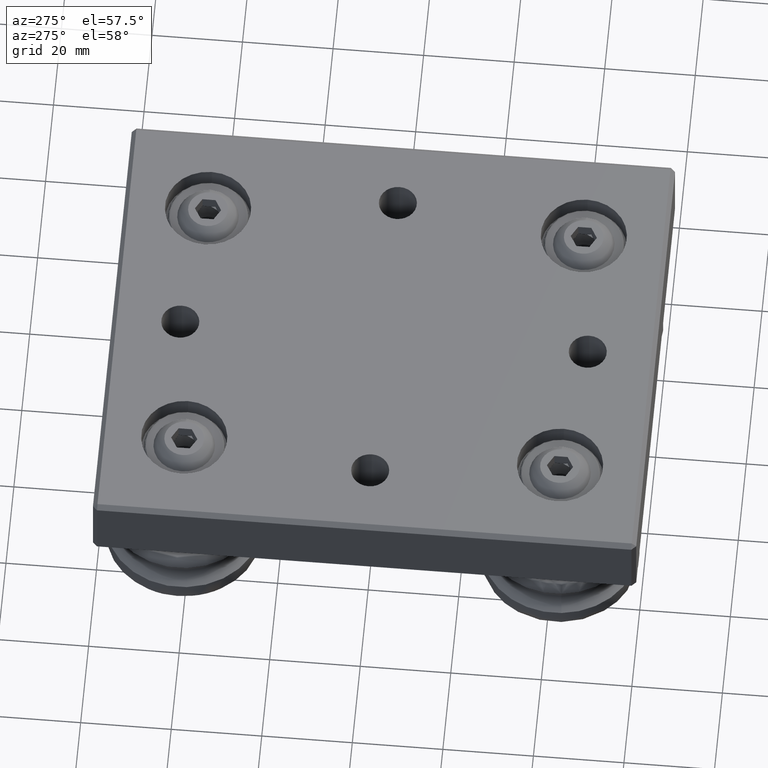
[diagram: clean part render]
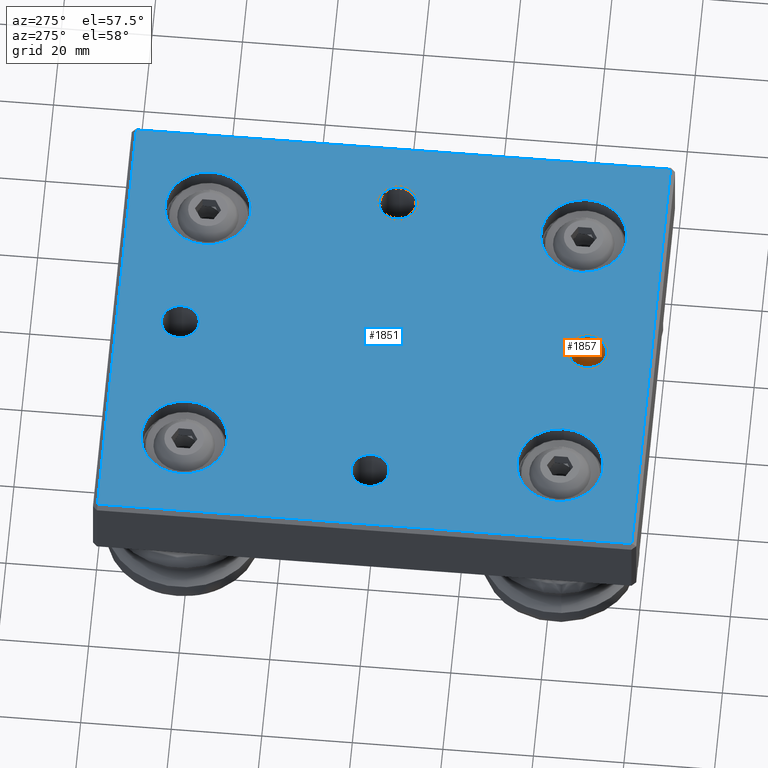
[diagram: same view with the hole feature highlighted: cylindrical wall and planar end face, labeled with their STEP entity ids]
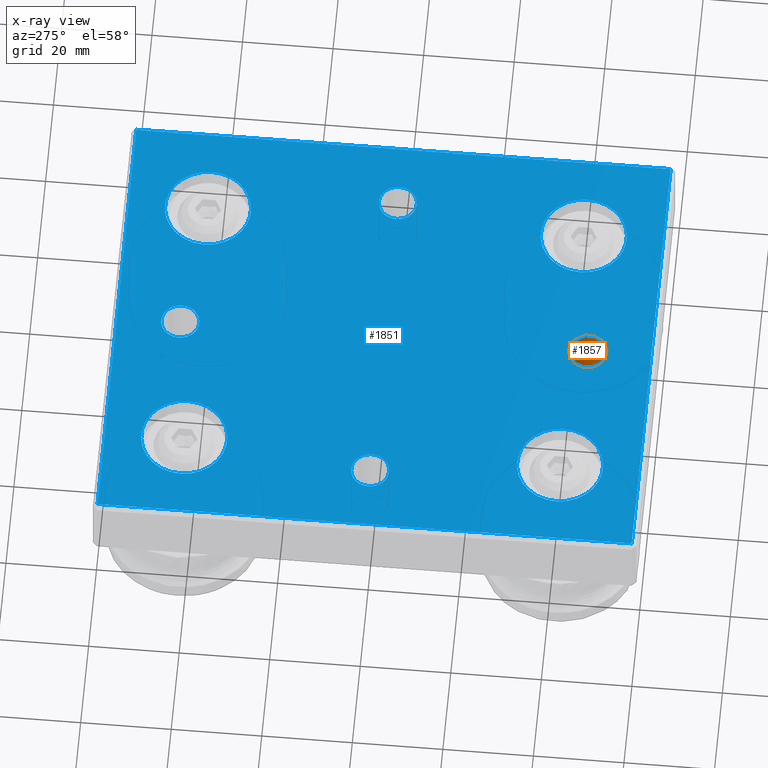
[diagram: x-ray of the same camera — body ghosted, the hole faces saturated]
A machine part, auxiliary view. The highlighted faces form one hole feature of diameter 8.376 mm: the cylindrical wall (entity #1857, orange) and its adjacent planar end face (entity #1851, blue) — they share a circular edge in the B-rep.
The next image is the same camera in x-ray (body ghosted, the hole faces saturated) — the bore reads through the body.
Wall:
#167=CYLINDRICAL_SURFACE('',#2079,4.188);
#225=CIRCLE('',#2064,4.188);
#233=CIRCLE('',#2076,4.188);
#348=FACE_OUTER_BOUND('',#486,.T.);
#486=EDGE_LOOP('',(#1372,#1373,#1374,#1375));
#643=LINE('',#2991,#775);
#775=VECTOR('',#2405,4.188);
#888=VERTEX_POINT('',#2964);
#896=VERTEX_POINT('',#2984);
#1059=EDGE_CURVE('',#888,#888,#225,.T.);
#1067=EDGE_CURVE('',#896,#896,#233,.T.);
#1070=EDGE_CURVE('',#888,#896,#643,.T.);
#1372=ORIENTED_EDGE('',*,*,#1059,.F.);
#1373=ORIENTED_EDGE('',*,*,#1070,.T.);
#1374=ORIENTED_EDGE('',*,*,#1067,.F.);
#1375=ORIENTED_EDGE('',*,*,#1070,.F.);
#1857=ADVANCED_FACE('',(#348),#167,.F.);
#2064=AXIS2_PLACEMENT_3D('',#2965,#2372,#2373);
#2076=AXIS2_PLACEMENT_3D('',#2985,#2396,#2397);
#2079=AXIS2_PLACEMENT_3D('',#2990,#2403,#2404);
#2372=DIRECTION('center_axis',(0.,1.,0.));
#2373=DIRECTION('ref_axis',(1.,0.,0.));
#2396=DIRECTION('center_axis',(0.,-1.,0.));
#2397=DIRECTION('ref_axis',(1.,0.,0.));
#2403=DIRECTION('center_axis',(0.,-1.,0.));
#2404=DIRECTION('ref_axis',(1.,0.,0.));
#2405=DIRECTION('',(0.,1.,0.));
#2964=CARTESIAN_POINT('',(-4.188,0.,45.));
#2965=CARTESIAN_POINT('Origin',(0.,0.,45.));
#2984=CARTESIAN_POINT('',(-4.188,16.75,45.));
#2985=CARTESIAN_POINT('Origin',(0.,16.75,45.));
#2990=CARTESIAN_POINT('Origin',(0.,157.100485358894,45.));
#2991=CARTESIAN_POINT('',(-4.188,157.100485358894,45.));
End face:
#190=FACE_BOUND('',#465,.T.);
#191=FACE_BOUND('',#466,.T.);
#192=FACE_BOUND('',#467,.T.);
#193=FACE_BOUND('',#468,.T.);
#194=FACE_BOUND('',#469,.T.);
#195=FACE_BOUND('',#470,.T.);
#196=FACE_BOUND('',#471,.T.);
#197=FACE_BOUND('',#472,.T.);
#219=CIRCLE('',#2058,9.5);
#220=CIRCLE('',#2059,9.5);
#221=CIRCLE('',#2060,9.5);
#222=CIRCLE('',#2061,9.5);
#223=CIRCLE('',#2062,4.188);
#224=CIRCLE('',#2063,4.188);
#225=CIRCLE('',#2064,4.188);
#226=CIRCLE('',#2065,4.188);
#342=FACE_OUTER_BOUND('',#464,.T.);
#464=EDGE_LOOP('',(#1332,#1333,#1334,#1335));
#465=EDGE_LOOP('',(#1336));
#466=EDGE_LOOP('',(#1337));
#467=EDGE_LOOP('',(#1338));
#468=EDGE_LOOP('',(#1339));
#469=EDGE_LOOP('',(#1340));
#470=EDGE_LOOP('',(#1341));
#471=EDGE_LOOP('',(#1342));
#472=EDGE_LOOP('',(#1343));
#613=LINE('',#2902,#745);
#618=LINE('',#2912,#750);
#625=LINE('',#2925,#757);
#627=LINE('',#2928,#759);
#745=VECTOR('',#2301,10.);
#750=VECTOR('',#2310,10.);
#757=VECTOR('',#2323,10.);
#759=VECTOR('',#2327,10.);
#869=VERTEX_POINT('',#2883);
#875=VERTEX_POINT('',#2897);
#876=VERTEX_POINT('',#2904);
#881=VERTEX_POINT('',#2920);
#882=VERTEX_POINT('',#2952);
#883=VERTEX_POINT('',#2954);
#884=VERTEX_POINT('',#2956);
#885=VERTEX_POINT('',#2958);
#886=VERTEX_POINT('',#2960);
#887=VERTEX_POINT('',#2962);
#888=VERTEX_POINT('',#2964);
#889=VERTEX_POINT('',#2966);
#1024=EDGE_CURVE('',#869,#875,#613,.T.);
#1029=EDGE_CURVE('',#876,#869,#618,.T.);
#1036=EDGE_CURVE('',#875,#881,#625,.T.);
#1038=EDGE_CURVE('',#881,#876,#627,.T.);
#1053=EDGE_CURVE('',#882,#882,#219,.T.);
#1054=EDGE_CURVE('',#883,#883,#220,.T.);
#1055=EDGE_CURVE('',#884,#884,#221,.T.);
#1056=EDGE_CURVE('',#885,#885,#222,.T.);
#1057=EDGE_CURVE('',#886,#886,#223,.T.);
#1058=EDGE_CURVE('',#887,#887,#224,.T.);
#1059=EDGE_CURVE('',#888,#888,#225,.T.);
#1060=EDGE_CURVE('',#889,#889,#226,.T.);
#1332=ORIENTED_EDGE('',*,*,#1024,.F.);
#1333=ORIENTED_EDGE('',*,*,#1029,.F.);
#1334=ORIENTED_EDGE('',*,*,#1038,.F.);
#1335=ORIENTED_EDGE('',*,*,#1036,.F.);
#1336=ORIENTED_EDGE('',*,*,#1053,.T.);
#1337=ORIENTED_EDGE('',*,*,#1054,.T.);
#1338=ORIENTED_EDGE('',*,*,#1055,.T.);
#1339=ORIENTED_EDGE('',*,*,#1056,.T.);
#1340=ORIENTED_EDGE('',*,*,#1057,.T.);
#1341=ORIENTED_EDGE('',*,*,#1058,.T.);
#1342=ORIENTED_EDGE('',*,*,#1059,.T.);
#1343=ORIENTED_EDGE('',*,*,#1060,.T.);
#1779=PLANE('',#2057);
#1851=ADVANCED_FACE('',(#342,#190,#191,#192,#193,#194,#195,#196,#197),#1779,
 .F.);
#2057=AXIS2_PLACEMENT_3D('',#2951,#2358,#2359);
#2058=AXIS2_PLACEMENT_3D('',#2953,#2360,#2361);
#2059=AXIS2_PLACEMENT_3D('',#2955,#2362,#2363);
#2060=AXIS2_PLACEMENT_3D('',#2957,#2364,#2365);
#2061=AXIS2_PLACEMENT_3D('',#2959,#2366,#2367);
#2062=AXIS2_PLACEMENT_3D('',#2961,#2368,#2369);
#2063=AXIS2_PLACEMENT_3D('',#2963,#2370,#2371);
#2064=AXIS2_PLACEMENT_3D('',#2965,#2372,#2373);
#2065=AXIS2_PLACEMENT_3D('',#2967,#2374,#2375);
#2301=DIRECTION('',(0.,0.,-1.));
#2310=DIRECTION('',(1.,0.,0.));
#2323=DIRECTION('',(-1.,0.,0.));
#2327=DIRECTION('',(0.,0.,1.));
#2358=DIRECTION('center_axis',(0.,1.,0.));
#2359=DIRECTION('ref_axis',(0.,0.,1.));
#2360=DIRECTION('center_axis',(0.,1.,0.));
#2361=DIRECTION('ref_axis',(1.,0.,0.));
#2362=DIRECTION('center_axis',(0.,1.,0.));
#2363=DIRECTION('ref_axis',(1.,0.,0.));
#2364=DIRECTION('center_axis',(0.,1.,0.));
#2365=DIRECTION('ref_axis',(1.,0.,0.));
#2366=DIRECTION('center_axis',(0.,1.,0.));
#2367=DIRECTION('ref_axis',(1.,0.,0.));
#2368=DIRECTION('center_axis',(0.,1.,0.));
#2369=DIRECTION('ref_axis',(1.,0.,0.));
#2370=DIRECTION('center_axis',(0.,1.,0.));
#2371=DIRECTION('ref_axis',(1.,0.,0.));
#2372=DIRECTION('center_axis',(0.,1.,0.));
#2373=DIRECTION('ref_axis',(1.,0.,0.));
#2374=DIRECTION('center_axis',(0.,1.,0.));
#2375=DIRECTION('ref_axis',(1.,0.,0.));
#2883=CARTESIAN_POINT('',(49.,0.,59.));
#2897=CARTESIAN_POINT('',(49.,0.,-59.));
#2902=CARTESIAN_POINT('',(49.,0.,30.));
#2904=CARTESIAN_POINT('',(-49.,0.,59.));
#2912=CARTESIAN_POINT('',(-25.,0.,59.));
#2920=CARTESIAN_POINT('',(-49.,0.,-59.));
#2925=CARTESIAN_POINT('',(25.,0.,-59.));
#2928=CARTESIAN_POINT('',(-49.,0.,-30.));
#2951=CARTESIAN_POINT('Origin',(0.,0.,0.));
#2952=CARTESIAN_POINT('',(-39.5,2.77555756156289E-16,41.5));
#2953=CARTESIAN_POINT('Origin',(-30.,0.,41.5));
#2954=CARTESIAN_POINT('',(20.5,2.77555756156289E-16,-41.5));
#2955=CARTESIAN_POINT('Origin',(30.,0.,-41.5));
#2956=CARTESIAN_POINT('',(20.5,2.77555756156289E-16,41.5));
#2957=CARTESIAN_POINT('Origin',(30.,0.,41.5));
#2958=CARTESIAN_POINT('',(-39.5,2.77555756156289E-16,-41.5));
#2959=CARTESIAN_POINT('Origin',(-30.,0.,-41.5));
#2960=CARTESIAN_POINT('',(-39.188,0.,-5.12882079482912E-16));
#2961=CARTESIAN_POINT('Origin',(-35.,0.,0.));
#2962=CARTESIAN_POINT('',(30.812,0.,-5.12882079482912E-16));
#2963=CARTESIAN_POINT('Origin',(35.,0.,0.));
#2964=CARTESIAN_POINT('',(-4.188,0.,45.));
#2965=CARTESIAN_POINT('Origin',(0.,0.,45.));
#2966=CARTESIAN_POINT('',(-4.188,0.,-45.));
#2967=CARTESIAN_POINT('Origin',(0.,0.,-45.));